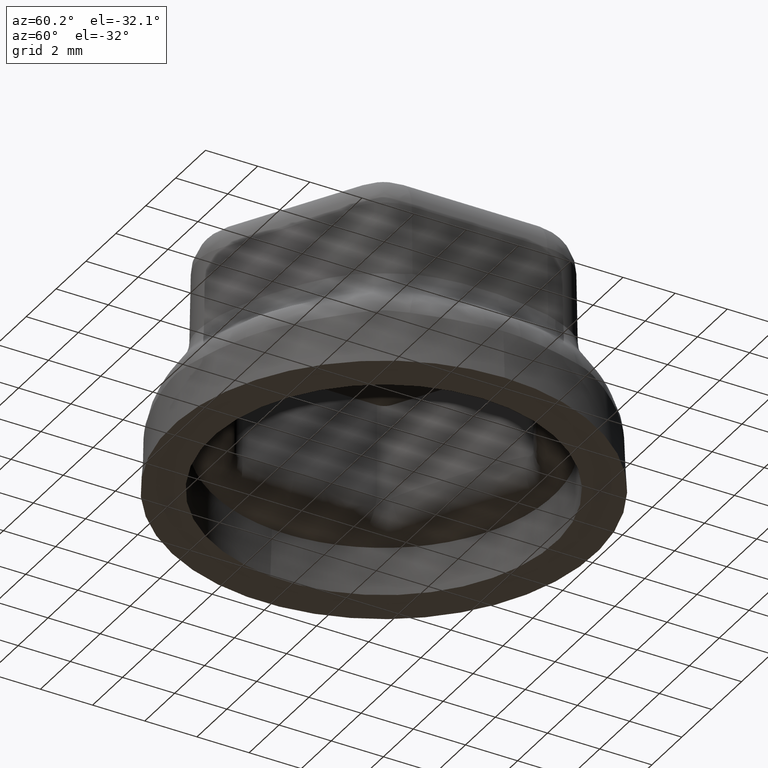
[diagram: clean part render]
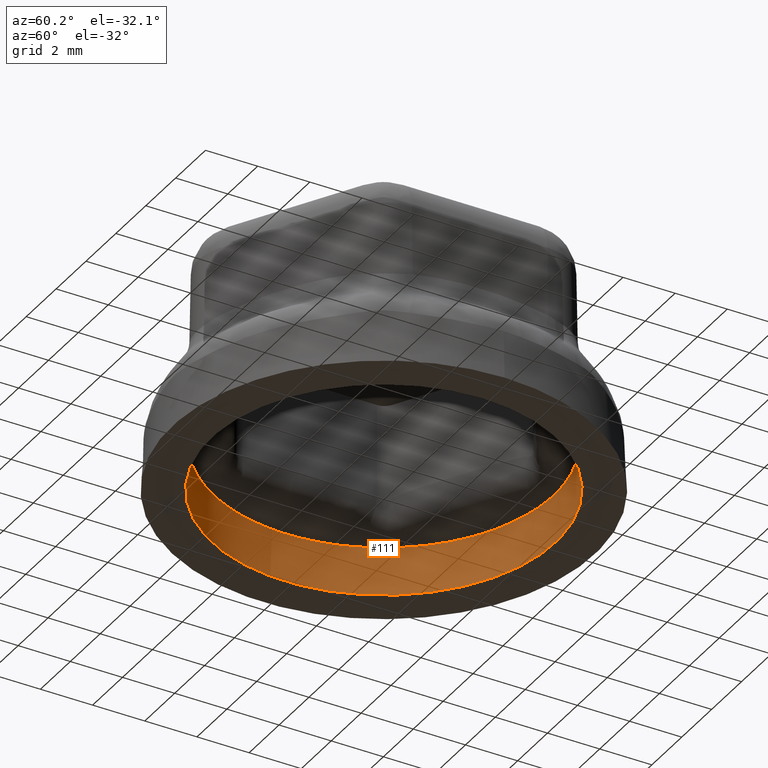
[diagram: same view with one face highlighted and labeled with its STEP entity id]
A machine part, auxiliary view. The second image highlights one B-rep face of the part: STEP entity #111.
In plain terms, the highlighted conical surface has half-angle 3 deg.
Its self-contained STEP definition (entity closure, byte-faithful):
#111 = ADVANCED_FACE( '', ( #279, #280 ), #281, .F. );
#279 = FACE_OUTER_BOUND( '', #1787, .T. );
#280 = FACE_BOUND( '', #1788, .T. );
#281 = CONICAL_SURFACE( '', #1789, 6.50000000000000, 0.0523598775598299 );
#1787 = EDGE_LOOP( '', ( #5781 ) );
#1788 = EDGE_LOOP( '', ( #5782, #5783, #5784, #5785, #5786, #5787, #5788, #5789, #5790, #5791, #5792, #5793, #5794, #5795, #5796, #5797, #5798, #5799, #5800, #5801, #5802, #5803, #5804, #5805 ) );
#1789 = AXIS2_PLACEMENT_3D( '', #5806, #5807, #5808 );
#5781 = ORIENTED_EDGE( '', *, *, #6417, .F. );
#5782 = ORIENTED_EDGE( '', *, *, #6403, .T. );
#5783 = ORIENTED_EDGE( '', *, *, #6409, .T. );
#5784 = ORIENTED_EDGE( '', *, *, #6416, .T. );
#5785 = ORIENTED_EDGE( '', *, *, #6418, .T. );
#5786 = ORIENTED_EDGE( '', *, *, #6407, .T. );
#5787 = ORIENTED_EDGE( '', *, *, #6401, .T. );
#5788 = ORIENTED_EDGE( '', *, *, #6396, .T. );
#5789 = ORIENTED_EDGE( '', *, *, #6419, .T. );
#5790 = ORIENTED_EDGE( '', *, *, #6384, .T. );
#5791 = ORIENTED_EDGE( '', *, *, #6378, .T. );
#5792 = ORIENTED_EDGE( '', *, *, #6370, .T. );
#5793 = ORIENTED_EDGE( '', *, *, #6420, .T. );
#5794 = ORIENTED_EDGE( '', *, *, #6356, .T. );
#5795 = ORIENTED_EDGE( '', *, *, #6353, .T. );
#5796 = ORIENTED_EDGE( '', *, *, #6421, .T. );
#5797 = ORIENTED_EDGE( '', *, *, #6422, .T. );
#5798 = ORIENTED_EDGE( '', *, *, #6349, .T. );
#5799 = ORIENTED_EDGE( '', *, *, #6358, .T. );
#5800 = ORIENTED_EDGE( '', *, *, #6367, .T. );
#5801 = ORIENTED_EDGE( '', *, *, #6423, .T. );
#5802 = ORIENTED_EDGE( '', *, *, #6380, .T. );
#5803 = ORIENTED_EDGE( '', *, *, #6386, .T. );
#5804 = ORIENTED_EDGE( '', *, *, #6394, .T. );
#5805 = ORIENTED_EDGE( '', *, *, #6424, .T. );
#5806 = CARTESIAN_POINT( '', ( 1.73472347597681E-015, 0.000000000000000, 1.80000000000000 ) );
#5807 = DIRECTION( '', ( 0.000000000000000, 0.000000000000000, -1.00000000000000 ) );
#5808 = DIRECTION( '', ( -1.00000000000000, 0.000000000000000, 0.000000000000000 ) );
#6349 = EDGE_CURVE( '', #6685, #6683, #6686, .T. );
#6353 = EDGE_CURVE( '', #6688, #6690, #6692, .T. );
#6356 = EDGE_CURVE( '', #6694, #6688, #6697, .T. );
#6358 = EDGE_CURVE( '', #6683, #6698, #6701, .T. );
#6367 = EDGE_CURVE( '', #6698, #6712, #6715, .T. );
#6370 = EDGE_CURVE( '', #6717, #6708, #6719, .T. );
#6378 = EDGE_CURVE( '', #6729, #6717, #6732, .T. );
#6380 = EDGE_CURVE( '', #6725, #6733, #6735, .T. );
#6384 = EDGE_CURVE( '', #6738, #6729, #6741, .T. );
#6386 = EDGE_CURVE( '', #6733, #6742, #6744, .T. );
#6394 = EDGE_CURVE( '', #6742, #6754, #6756, .T. );
#6396 = EDGE_CURVE( '', #6757, #6751, #6759, .T. );
#6401 = EDGE_CURVE( '', #6764, #6757, #6767, .T. );
#6403 = EDGE_CURVE( '', #6760, #6768, #6770, .T. );
#6407 = EDGE_CURVE( '', #6773, #6764, #6776, .T. );
#6409 = EDGE_CURVE( '', #6768, #6777, #6780, .T. );
#6416 = EDGE_CURVE( '', #6777, #6786, #6789, .T. );
#6417 = EDGE_CURVE( '', #6790, #6790, #6791, .T. );
#6418 = EDGE_CURVE( '', #6786, #6773, #6792, .T. );
#6419 = EDGE_CURVE( '', #6751, #6738, #6793, .T. );
#6420 = EDGE_CURVE( '', #6708, #6694, #6794, .T. );
#6421 = EDGE_CURVE( '', #6690, #6795, #6796, .T. );
#6422 = EDGE_CURVE( '', #6795, #6685, #6797, .T. );
#6423 = EDGE_CURVE( '', #6712, #6725, #6798, .T. );
#6424 = EDGE_CURVE( '', #6754, #6760, #6799, .T. );
#6683 = VERTEX_POINT( '', #7348 );
#6685 = VERTEX_POINT( '', #7350 );
#6686 = CIRCLE( '', #7351, 6.50000000000000 );
#6688 = VERTEX_POINT( '', #7353 );
#6690 = VERTEX_POINT( '', #7355 );
#6692 = CIRCLE( '', #7357, 6.50000000000000 );
#6694 = VERTEX_POINT( '', #7359 );
#6697 = CIRCLE( '', #7376, 6.50000000000000 );
#6698 = VERTEX_POINT( '', #7377 );
#6701 = CIRCLE( '', #7380, 6.50000000000000 );
#6708 = VERTEX_POINT( '', #7430 );
#6712 = VERTEX_POINT( '', #7436 );
#6715 = CIRCLE( '', #7439, 6.50000000000000 );
#6717 = VERTEX_POINT( '', #7452 );
#6719 = CIRCLE( '', #7454, 6.50000000000000 );
#6725 = VERTEX_POINT( '', #7475 );
#6729 = VERTEX_POINT( '', #7480 );
#6732 = CIRCLE( '', #7513, 6.50000000000000 );
#6733 = VERTEX_POINT( '', #7514 );
#6735 = CIRCLE( '', #7516, 6.50000000000000 );
#6738 = VERTEX_POINT( '', #7520 );
#6741 = CIRCLE( '', #7536, 6.50000000000000 );
#6742 = VERTEX_POINT( '', #7537 );
#6744 = CIRCLE( '', #7539, 6.50000000000000 );
#6751 = VERTEX_POINT( '', #7589 );
#6754 = VERTEX_POINT( '', #7593 );
#6756 = CIRCLE( '', #7595, 6.50000000000000 );
#6757 = VERTEX_POINT( '', #7596 );
#6759 = CIRCLE( '', #7598, 6.50000000000000 );
#6760 = VERTEX_POINT( '', #7599 );
#6764 = VERTEX_POINT( '', #7604 );
#6767 = CIRCLE( '', #7637, 6.50000000000000 );
#6768 = VERTEX_POINT( '', #7638 );
#6770 = CIRCLE( '', #7640, 6.50000000000000 );
#6773 = VERTEX_POINT( '', #7644 );
#6776 = CIRCLE( '', #7658, 6.50000000000000 );
#6777 = VERTEX_POINT( '', #7659 );
#6780 = CIRCLE( '', #7662, 6.50000000000000 );
#6786 = VERTEX_POINT( '', #7713 );
#6789 = CIRCLE( '', #7717, 6.50000000000000 );
#6790 = VERTEX_POINT( '', #7718 );
#6791 = CIRCLE( '', #7719, 6.59433400270947 );
#6792 = CIRCLE( '', #7720, 6.50000000000000 );
#6793 = CIRCLE( '', #7721, 6.50000000000000 );
#6794 = CIRCLE( '', #7722, 6.50000000000000 );
#6795 = VERTEX_POINT( '', #7723 );
#6796 = CIRCLE( '', #7724, 6.50000000000000 );
#6797 = CIRCLE( '', #7725, 6.50000000000000 );
#6798 = CIRCLE( '', #7726, 6.50000000000000 );
#6799 = CIRCLE( '', #7727, 6.50000000000000 );
#7348 = CARTESIAN_POINT( '', ( -0.932168792312241, -6.43281130942290, 1.80000000000000 ) );
#7350 = CARTESIAN_POINT( '', ( -2.73448208805709, -5.89683031043754, 1.80000000000000 ) );
#7351 = AXIS2_PLACEMENT_3D( '', #9407, #9408, #9409 );
#7353 = CARTESIAN_POINT( '', ( -6.03706240786818, -2.40912379995399, 1.80000000000000 ) );
#7355 = CARTESIAN_POINT( '', ( -5.10489361555595, -4.02368750946891, 1.80000000000000 ) );
#7357 = AXIS2_PLACEMENT_3D( '', #9419, #9420, #9421 );
#7359 = CARTESIAN_POINT( '', ( -6.47404589467353, -0.580284200767824, 1.80000000000000 ) );
#7376 = AXIS2_PLACEMENT_3D( '', #9425, #9426, #9427 );
#7377 = CARTESIAN_POINT( '', ( 0.932168792312234, -6.43281130942290, 1.80000000000000 ) );
#7380 = AXIS2_PLACEMENT_3D( '', #9431, #9432, #9433 );
#7430 = CARTESIAN_POINT( '', ( -6.47404589467353, 0.580284200767822, 1.80000000000000 ) );
#7436 = CARTESIAN_POINT( '', ( 2.73448208805706, -5.89683031043756, 1.80000000000000 ) );
#7439 = AXIS2_PLACEMENT_3D( '', #9444, #9445, #9446 );
#7452 = CARTESIAN_POINT( '', ( -6.03706240786819, 2.40912379995399, 1.80000000000000 ) );
#7454 = AXIS2_PLACEMENT_3D( '', #9450, #9451, #9452 );
#7475 = CARTESIAN_POINT( '', ( 3.73956380661647, -5.31654610966971, 1.80000000000000 ) );
#7480 = CARTESIAN_POINT( '', ( -5.10489361555595, 4.02368750946891, 1.80000000000000 ) );
#7513 = AXIS2_PLACEMENT_3D( '', #9462, #9463, #9464 );
#7514 = CARTESIAN_POINT( '', ( 5.10489361555595, -4.02368750946891, 1.80000000000000 ) );
#7516 = AXIS2_PLACEMENT_3D( '', #9468, #9469, #9470 );
#7520 = CARTESIAN_POINT( '', ( -3.73956380661645, 5.31654610966972, 1.80000000000000 ) );
#7536 = AXIS2_PLACEMENT_3D( '', #9475, #9476, #9477 );
#7537 = CARTESIAN_POINT( '', ( 6.03706240786819, -2.40912379995400, 1.80000000000000 ) );
#7539 = AXIS2_PLACEMENT_3D( '', #9481, #9482, #9483 );
#7589 = CARTESIAN_POINT( '', ( -2.73448208805708, 5.89683031043755, 1.80000000000000 ) );
#7593 = CARTESIAN_POINT( '', ( 6.47404589467353, -0.580284200767878, 1.80000000000000 ) );
#7595 = AXIS2_PLACEMENT_3D( '', #9493, #9494, #9495 );
#7596 = CARTESIAN_POINT( '', ( -0.932168792312237, 6.43281130942290, 1.80000000000000 ) );
#7598 = AXIS2_PLACEMENT_3D( '', #9499, #9500, #9501 );
#7599 = CARTESIAN_POINT( '', ( 6.47404589467353, 0.580284200767872, 1.80000000000000 ) );
#7604 = CARTESIAN_POINT( '', ( 0.932168792312241, 6.43281130942290, 1.80000000000000 ) );
#7637 = AXIS2_PLACEMENT_3D( '', #9509, #9510, #9511 );
#7638 = CARTESIAN_POINT( '', ( 6.03706240786819, 2.40912379995399, 1.80000000000000 ) );
#7640 = AXIS2_PLACEMENT_3D( '', #9515, #9516, #9517 );
#7644 = CARTESIAN_POINT( '', ( 2.73448208805706, 5.89683031043755, 1.80000000000000 ) );
#7658 = AXIS2_PLACEMENT_3D( '', #9522, #9523, #9524 );
#7659 = CARTESIAN_POINT( '', ( 5.10489361555595, 4.02368750946891, 1.80000000000000 ) );
#7662 = AXIS2_PLACEMENT_3D( '', #9528, #9529, #9530 );
#7713 = CARTESIAN_POINT( '', ( 3.73956380661647, 5.31654610966971, 1.80000000000000 ) );
#7717 = AXIS2_PLACEMENT_3D( '', #9537, #9538, #9539 );
#7718 = CARTESIAN_POINT( '', ( 6.59433400270947, 0.000000000000000, 2.60208521396521E-015 ) );
#7719 = AXIS2_PLACEMENT_3D( '', #9540, #9541, #9542 );
#7720 = AXIS2_PLACEMENT_3D( '', #9543, #9544, #9545 );
#7721 = AXIS2_PLACEMENT_3D( '', #9546, #9547, #9548 );
#7722 = AXIS2_PLACEMENT_3D( '', #9549, #9550, #9551 );
#7723 = CARTESIAN_POINT( '', ( -3.73956380661644, -5.31654610966973, 1.80000000000000 ) );
#7724 = AXIS2_PLACEMENT_3D( '', #9552, #9553, #9554 );
#7725 = AXIS2_PLACEMENT_3D( '', #9555, #9556, #9557 );
#7726 = AXIS2_PLACEMENT_3D( '', #9558, #9559, #9560 );
#7727 = AXIS2_PLACEMENT_3D( '', #9561, #9562, #9563 );
#9407 = CARTESIAN_POINT( '', ( 1.73472347597681E-015, 0.000000000000000, 1.80000000000000 ) );
#9408 = DIRECTION( '', ( 0.000000000000000, 0.000000000000000, 1.00000000000000 ) );
#9409 = DIRECTION( '', ( 1.00000000000000, 0.000000000000000, 0.000000000000000 ) );
#9419 = CARTESIAN_POINT( '', ( 1.73472347597681E-015, 0.000000000000000, 1.80000000000000 ) );
#9420 = DIRECTION( '', ( 0.000000000000000, 0.000000000000000, 1.00000000000000 ) );
#9421 = DIRECTION( '', ( 1.00000000000000, 0.000000000000000, 0.000000000000000 ) );
#9425 = CARTESIAN_POINT( '', ( 1.73472347597681E-015, 0.000000000000000, 1.80000000000000 ) );
#9426 = DIRECTION( '', ( 0.000000000000000, 0.000000000000000, 1.00000000000000 ) );
#9427 = DIRECTION( '', ( 1.00000000000000, 0.000000000000000, 0.000000000000000 ) );
#9431 = CARTESIAN_POINT( '', ( 1.73472347597681E-015, 0.000000000000000, 1.80000000000000 ) );
#9432 = DIRECTION( '', ( 0.000000000000000, 0.000000000000000, 1.00000000000000 ) );
#9433 = DIRECTION( '', ( 1.00000000000000, 0.000000000000000, 0.000000000000000 ) );
#9444 = CARTESIAN_POINT( '', ( 1.73472347597681E-015, 0.000000000000000, 1.80000000000000 ) );
#9445 = DIRECTION( '', ( 0.000000000000000, 0.000000000000000, 1.00000000000000 ) );
#9446 = DIRECTION( '', ( 1.00000000000000, 0.000000000000000, 0.000000000000000 ) );
#9450 = CARTESIAN_POINT( '', ( 1.73472347597681E-015, 0.000000000000000, 1.80000000000000 ) );
#9451 = DIRECTION( '', ( 0.000000000000000, 0.000000000000000, 1.00000000000000 ) );
#9452 = DIRECTION( '', ( 1.00000000000000, 0.000000000000000, 0.000000000000000 ) );
#9462 = CARTESIAN_POINT( '', ( 1.73472347597681E-015, 0.000000000000000, 1.80000000000000 ) );
#9463 = DIRECTION( '', ( 0.000000000000000, 0.000000000000000, 1.00000000000000 ) );
#9464 = DIRECTION( '', ( 1.00000000000000, 0.000000000000000, 0.000000000000000 ) );
#9468 = CARTESIAN_POINT( '', ( 1.73472347597681E-015, 0.000000000000000, 1.80000000000000 ) );
#9469 = DIRECTION( '', ( 0.000000000000000, 0.000000000000000, 1.00000000000000 ) );
#9470 = DIRECTION( '', ( 1.00000000000000, 0.000000000000000, 0.000000000000000 ) );
#9475 = CARTESIAN_POINT( '', ( 1.73472347597681E-015, 0.000000000000000, 1.80000000000000 ) );
#9476 = DIRECTION( '', ( 0.000000000000000, 0.000000000000000, 1.00000000000000 ) );
#9477 = DIRECTION( '', ( 1.00000000000000, 0.000000000000000, 0.000000000000000 ) );
#9481 = CARTESIAN_POINT( '', ( 1.73472347597681E-015, 0.000000000000000, 1.80000000000000 ) );
#9482 = DIRECTION( '', ( 0.000000000000000, 0.000000000000000, 1.00000000000000 ) );
#9483 = DIRECTION( '', ( 1.00000000000000, 0.000000000000000, 0.000000000000000 ) );
#9493 = CARTESIAN_POINT( '', ( 1.73472347597681E-015, 0.000000000000000, 1.80000000000000 ) );
#9494 = DIRECTION( '', ( 0.000000000000000, 0.000000000000000, 1.00000000000000 ) );
#9495 = DIRECTION( '', ( 1.00000000000000, 0.000000000000000, 0.000000000000000 ) );
#9499 = CARTESIAN_POINT( '', ( 1.73472347597681E-015, 0.000000000000000, 1.80000000000000 ) );
#9500 = DIRECTION( '', ( 0.000000000000000, 0.000000000000000, 1.00000000000000 ) );
#9501 = DIRECTION( '', ( 1.00000000000000, 0.000000000000000, 0.000000000000000 ) );
#9509 = CARTESIAN_POINT( '', ( 1.73472347597681E-015, 0.000000000000000, 1.80000000000000 ) );
#9510 = DIRECTION( '', ( 0.000000000000000, 0.000000000000000, 1.00000000000000 ) );
#9511 = DIRECTION( '', ( 1.00000000000000, 0.000000000000000, 0.000000000000000 ) );
#9515 = CARTESIAN_POINT( '', ( 1.73472347597681E-015, 0.000000000000000, 1.80000000000000 ) );
#9516 = DIRECTION( '', ( 0.000000000000000, 0.000000000000000, 1.00000000000000 ) );
#9517 = DIRECTION( '', ( 1.00000000000000, 0.000000000000000, 0.000000000000000 ) );
#9522 = CARTESIAN_POINT( '', ( 1.73472347597681E-015, 0.000000000000000, 1.80000000000000 ) );
#9523 = DIRECTION( '', ( 0.000000000000000, 0.000000000000000, 1.00000000000000 ) );
#9524 = DIRECTION( '', ( 1.00000000000000, 0.000000000000000, 0.000000000000000 ) );
#9528 = CARTESIAN_POINT( '', ( 1.73472347597681E-015, 0.000000000000000, 1.80000000000000 ) );
#9529 = DIRECTION( '', ( 0.000000000000000, 0.000000000000000, 1.00000000000000 ) );
#9530 = DIRECTION( '', ( 1.00000000000000, 0.000000000000000, 0.000000000000000 ) );
#9537 = CARTESIAN_POINT( '', ( 1.73472347597681E-015, 0.000000000000000, 1.80000000000000 ) );
#9538 = DIRECTION( '', ( 0.000000000000000, 0.000000000000000, 1.00000000000000 ) );
#9539 = DIRECTION( '', ( 1.00000000000000, 0.000000000000000, 0.000000000000000 ) );
#9540 = CARTESIAN_POINT( '', ( 1.73472347597681E-015, 0.000000000000000, 2.60208521396521E-015 ) );
#9541 = DIRECTION( '', ( 0.000000000000000, 0.000000000000000, 1.00000000000000 ) );
#9542 = DIRECTION( '', ( 1.00000000000000, 0.000000000000000, 0.000000000000000 ) );
#9543 = CARTESIAN_POINT( '', ( 1.73472347597681E-015, 0.000000000000000, 1.80000000000000 ) );
#9544 = DIRECTION( '', ( 0.000000000000000, 0.000000000000000, 1.00000000000000 ) );
#9545 = DIRECTION( '', ( 1.00000000000000, 0.000000000000000, 0.000000000000000 ) );
#9546 = CARTESIAN_POINT( '', ( 1.73472347597681E-015, 0.000000000000000, 1.80000000000000 ) );
#9547 = DIRECTION( '', ( 0.000000000000000, 0.000000000000000, 1.00000000000000 ) );
#9548 = DIRECTION( '', ( 1.00000000000000, 0.000000000000000, 0.000000000000000 ) );
#9549 = CARTESIAN_POINT( '', ( 1.73472347597681E-015, 0.000000000000000, 1.80000000000000 ) );
#9550 = DIRECTION( '', ( 0.000000000000000, 0.000000000000000, 1.00000000000000 ) );
#9551 = DIRECTION( '', ( 1.00000000000000, 0.000000000000000, 0.000000000000000 ) );
#9552 = CARTESIAN_POINT( '', ( 1.73472347597681E-015, 0.000000000000000, 1.80000000000000 ) );
#9553 = DIRECTION( '', ( 0.000000000000000, 0.000000000000000, 1.00000000000000 ) );
#9554 = DIRECTION( '', ( 1.00000000000000, 0.000000000000000, 0.000000000000000 ) );
#9555 = CARTESIAN_POINT( '', ( 1.73472347597681E-015, 0.000000000000000, 1.80000000000000 ) );
#9556 = DIRECTION( '', ( 0.000000000000000, 0.000000000000000, 1.00000000000000 ) );
#9557 = DIRECTION( '', ( 1.00000000000000, 0.000000000000000, 0.000000000000000 ) );
#9558 = CARTESIAN_POINT( '', ( 1.73472347597681E-015, 0.000000000000000, 1.80000000000000 ) );
#9559 = DIRECTION( '', ( 0.000000000000000, 0.000000000000000, 1.00000000000000 ) );
#9560 = DIRECTION( '', ( 1.00000000000000, 0.000000000000000, 0.000000000000000 ) );
#9561 = CARTESIAN_POINT( '', ( 1.73472347597681E-015, 0.000000000000000, 1.80000000000000 ) );
#9562 = DIRECTION( '', ( 0.000000000000000, 0.000000000000000, 1.00000000000000 ) );
#9563 = DIRECTION( '', ( 1.00000000000000, 0.000000000000000, 0.000000000000000 ) );